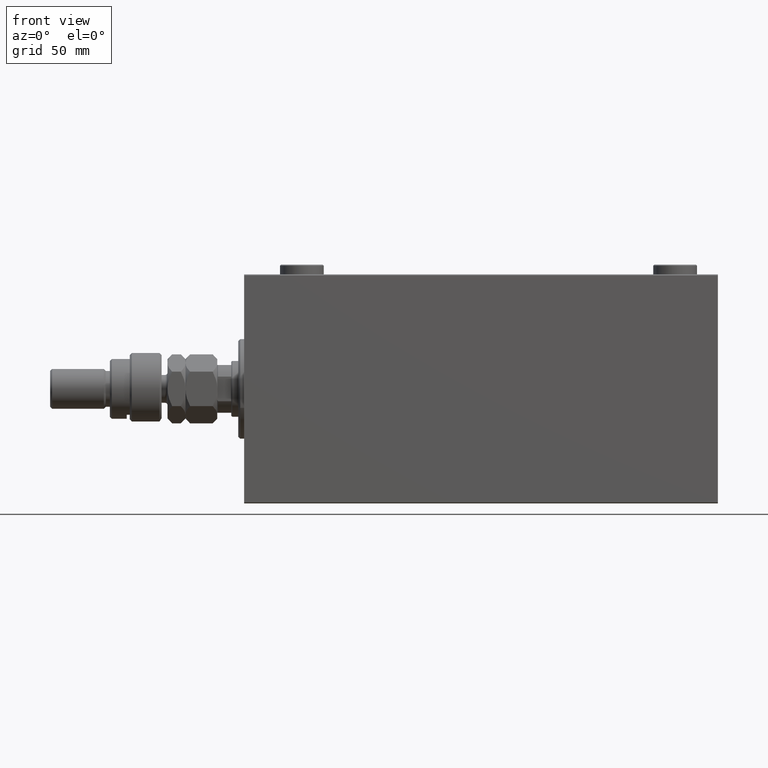
[diagram: clean part render]
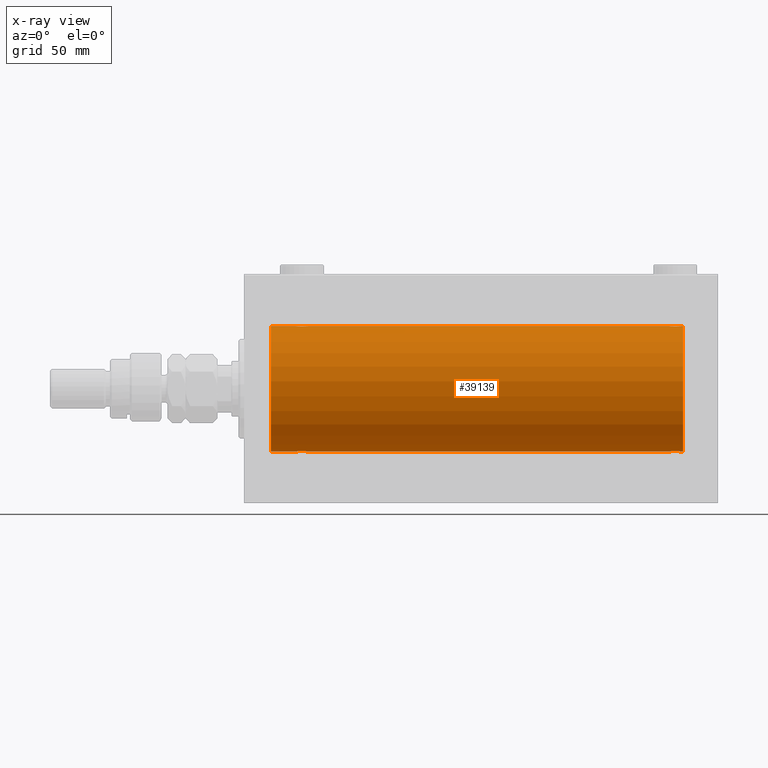
[diagram: x-ray — body ghosted, one internal face saturated and labeled with its STEP entity id]
A machine part, front view, then the same camera in x-ray: the body is ghosted and one INTERNAL B-rep face — a face not visible from any outside direction — is saturated and labeled: STEP entity #39139.
In plain terms, the highlighted cylindrical surface (partial cylindrical patch) has radius 31.5 mm, axis along (-1, -0, -0).
Its self-contained STEP definition (entity closure, byte-faithful):
#83 = CARTESIAN_POINT ( 'NONE',  ( 28.80417705560560648, -3.000152387858484371, -31.35680286115500337 ) ) ;
#229 = CIRCLE ( 'NONE', #27418, 31.50000000000000000 ) ;
#583 = CARTESIAN_POINT ( 'NONE',  ( 218.4846035992466682, -2.258226318633784313, -31.41925597582826413 ) ) ;
#1029 = CARTESIAN_POINT ( 'NONE',  ( 32.00000000000000000, -3.906065418435112189E-16, 31.50000000000000000 ) ) ;
#1279 = CARTESIAN_POINT ( 'NONE',  ( 26.09580549261944427, -0.7775502215293862429, 31.49099686045558144 ) ) ;
#1311 = CARTESIAN_POINT ( 'NONE',  ( 26.00000000000000355, -6.595038141055444136E-15, -31.50000000000000000 ) ) ;
#1442 = DIRECTION ( 'NONE',  ( -1.000000000000000000, 0.000000000000000000, 0.000000000000000000 ) ) ;
#1488 = CARTESIAN_POINT ( 'NONE',  ( 214.5185653712696023, -2.261012035264798214, -31.41905495618427935 ) ) ;
#1499 = VERTEX_POINT ( 'NONE', #1929 ) ;
#1682 = EDGE_CURVE ( 'NONE', #23346, #37969, #41583, .T. ) ;
#1729 = CARTESIAN_POINT ( 'NONE',  ( 219.1041778127472526, -1.502389880413004031, -31.46458023642405166 ) ) ;
#1796 = B_SPLINE_CURVE_WITH_KNOTS ( 'NONE', 3,
 ( #28255, #32635, #2929, #20944, #9767, #20712, #21188, #35815, #43366, #1980, #32153, #10234, #17768, #16823, #39224, #47495, #28732, #28009, #9522, #47022, #43131, #36296, #6599, #9997, #20471, #35582, #36063, #31672, #46539, #21428, #14126, #42886 ),
 .UNSPECIFIED., .F., .F.,
 ( 4, 2, 2, 2, 2, 2, 2, 2, 2, 2, 2, 2, 2, 2, 2, 4 ),
 ( 0.009384682587134643081, 0.009971088165454042307, 0.01055749374377344327, 0.01114389932209284423, 0.01173030490041224345, 0.01231671047873164268, 0.01290311605705104364, 0.01348952163537044460, 0.01407592721368984383, 0.01466233279200924305, 0.01524873837032864402, 0.01583514394864804498, 0.01642154952696744594, 0.01700795510528684690, 0.01759436068360624439, 0.01876717184024504284 ),
 .UNSPECIFIED. ) ;
#1817 = ORIENTED_EDGE ( 'NONE', *, *, #38842, .T. ) ;
#1929 = CARTESIAN_POINT ( 'NONE',  ( 13.50000000000001243, 3.857637417314162689E-15, -31.50000000000000000 ) ) ;
#1980 = CARTESIAN_POINT ( 'NONE',  ( 214.5153964007533887, -2.258226318633788754, 31.41925597582826413 ) ) ;
#2161 = EDGE_CURVE ( 'NONE', #21942, #5650, #19748, .T. ) ;
#2249 = CARTESIAN_POINT ( 'NONE',  ( 32.00000000000000000, 3.857637396137448068E-15, -31.50000000000000000 ) ) ;
#2319 = CARTESIAN_POINT ( 'NONE',  ( 213.4999999999999716, -2.739609923574792981E-14, -31.50000000000000000 ) ) ;
#2574 = VECTOR ( 'NONE', #22155, 1000.000000000000000 ) ;
#2681 = LINE ( 'NONE', #9754, #8133 ) ;
#2929 = CARTESIAN_POINT ( 'NONE',  ( 213.5189849060847678, -0.3904857149112037629, 31.49817436802766935 ) ) ;
#3006 = CARTESIAN_POINT ( 'NONE',  ( 29.77881912642320827, -2.903733559410679455, -31.36590199989303684 ) ) ;
#3491 = CARTESIAN_POINT ( 'NONE',  ( 26.00000000000000355, -0.3965830985361813443, -31.50000000000000711 ) ) ;
#3733 = CARTESIAN_POINT ( 'NONE',  ( 30.83043691487002746, -2.384935707362433988, -31.40977595730572958 ) ) ;
#4257 = ORIENTED_EDGE ( 'NONE', *, *, #18270, .F. ) ;
#4596 = DIRECTION ( 'NONE',  ( -1.000000000000000000, 0.000000000000000000, 0.000000000000000000 ) ) ;
#4688 = CARTESIAN_POINT ( 'NONE',  ( 26.00000000000001066, -0.1958045626907463088, 31.50000000000000711 ) ) ;
#4931 = CARTESIAN_POINT ( 'NONE',  ( 30.32865414687508832, -2.696917666262907520, 31.38442820068731365 ) ) ;
#5054 = CARTESIAN_POINT ( 'NONE',  ( 220.5000000000000000, 3.857637417314162689E-15, -31.50000000000000000 ) ) ;
#5149 = CARTESIAN_POINT ( 'NONE',  ( 214.6729577462972713, -2.387531469909791149, -31.40957782495775419 ) ) ;
#5650 = VERTEX_POINT ( 'NONE', #1311 ) ;
#6258 = EDGE_LOOP ( 'NONE', ( #42930, #40732, #21112, #17277, #28637, #24634, #31928, #28149, #1817, #29227, #17638, #4257 ) ) ;
#6311 = B_SPLINE_CURVE_WITH_KNOTS ( 'NONE', 3,
 ( #7662, #19972, #37601, #8139, #34850, #9035, #1729, #16566, #37363, #583, #23629, #11768, #35331, #20458, #11528, #30270, #31428, #42627, #12666, #46294, #18841, #38497, #38729, #5149, #1488, #24106, #14951, #33703, #16327, #29802, #44671, #31187 ),
 .UNSPECIFIED., .F., .F.,
 ( 4, 2, 2, 2, 2, 2, 2, 2, 2, 2, 2, 2, 2, 2, 2, 4 ),
 ( 0.009384682587134623999, 0.009971088165454023225, 0.01055749374377342419, 0.01114389932209282341, 0.01173030490041222264, 0.01231671047873162186, 0.01290311605705102109, 0.01348952163537042032, 0.01407592721368982128, 0.01466233279200921877, 0.01524873837032861973, 0.01583514394864802069, 0.01642154952696741818, 0.01700795510528681914, 0.01759436068360622010, 0.01876717184024502202 ),
 .UNSPECIFIED. ) ;
#6599 = CARTESIAN_POINT ( 'NONE',  ( 218.0009815629614707, -2.604888532024791203, 31.39229907792058683 ) ) ;
#6675 = CARTESIAN_POINT ( 'NONE',  ( 30.33239958099164824, -2.695056442718529954, -31.38458855656185875 ) ) ;
#7401 = CARTESIAN_POINT ( 'NONE',  ( 26.74175498096735026, -1.984587626072075617, -31.43772577203673180 ) ) ;
#7662 = CARTESIAN_POINT ( 'NONE',  ( 219.4999999999999716, 3.857637396132320472E-15, -31.50000000000000000 ) ) ;
#7865 = CARTESIAN_POINT ( 'NONE',  ( 29.39114547339941552, -2.980809450819701834, 31.35867074198615967 ) ) ;
#8038 = DIRECTION ( 'NONE',  ( 0.000000000000000000, 0.000000000000000000, 1.000000000000000000 ) ) ;
#8099 = VECTOR ( 'NONE', #10260, 1000.000000000000000 ) ;
#8133 = VECTOR ( 'NONE', #17040, 1000.000000000000000 ) ;
#8139 = CARTESIAN_POINT ( 'NONE',  ( 219.4041945073804811, -0.7775502215293821351, -31.49099686045559565 ) ) ;
#8340 = CARTESIAN_POINT ( 'NONE',  ( 31.60192140439154684, -1.506272792558323470, 31.46439306106697131 ) ) ;
#8513 = VECTOR ( 'NONE', #45479, 1000.000000000000000 ) ;
#8745 = CARTESIAN_POINT ( 'NONE',  ( 220.5000000000000000, 0.000000000000000000, 0.000000000000000000 ) ) ;
#8819 = CARTESIAN_POINT ( 'NONE',  ( 30.82704225370267892, -2.387531469909770276, 31.40957782495776129 ) ) ;
#9035 = CARTESIAN_POINT ( 'NONE',  ( 219.1971423883669843, -1.328004386210305476, -31.47251238182141009 ) ) ;
#9522 = CARTESIAN_POINT ( 'NONE',  ( 216.8911454733994049, -2.980809450819698281, 31.35867074198615967 ) ) ;
#9754 = CARTESIAN_POINT ( 'NONE',  ( 220.5000000000000000, 0.000000000000000000, 31.50000000000000000 ) ) ;
#9767 = CARTESIAN_POINT ( 'NONE',  ( 213.6533953625749973, -0.9669616078782046209, 31.48567319468627801 ) ) ;
#9997 = CARTESIAN_POINT ( 'NONE',  ( 218.3270422537026718, -2.387531469909772941, 31.40957782495776840 ) ) ;
#10234 = CARTESIAN_POINT ( 'NONE',  ( 214.9954371499299839, -2.602826974226394086, 31.39247100434485560 ) ) ;
#10260 = DIRECTION ( 'NONE',  ( -1.000000000000000000, -0.000000000000000000, -0.000000000000000000 ) ) ;
#11205 = VERTEX_POINT ( 'NONE', #39574 ) ;
#11496 = CARTESIAN_POINT ( 'NONE',  ( 28.79953541025904684, -2.999845816735297266, 31.35683219171744796 ) ) ;
#11528 = CARTESIAN_POINT ( 'NONE',  ( 217.2788191264232012, -2.903733559410694109, -31.36590199989303684 ) ) ;
#11768 = CARTESIAN_POINT ( 'NONE',  ( 218.0045628500700161, -2.602826974226396306, -31.39247100434486271 ) ) ;
#11886 = CARTESIAN_POINT ( 'NONE',  ( 13.50000000000001243, 0.000000000000000000, 0.000000000000000000 ) ) ;
#11932 = CARTESIAN_POINT ( 'NONE',  ( 220.5000000000000000, 0.000000000000000000, 0.000000000000000000 ) ) ;
#11979 = CARTESIAN_POINT ( 'NONE',  ( 30.50098156296146712, -2.604888532024788983, 31.39229907792058683 ) ) ;
#12174 = FACE_OUTER_BOUND ( 'NONE', #6258, .T. ) ;
#12440 = DIRECTION ( 'NONE',  ( -1.000000000000000000, -0.000000000000000000, -0.000000000000000000 ) ) ;
#12666 = CARTESIAN_POINT ( 'NONE',  ( 216.1088545266006520, -2.980809450819720041, -31.35867074198615967 ) ) ;
#12962 = EDGE_CURVE ( 'NONE', #25191, #15574, #29243, .T. ) ;
#13963 = CARTESIAN_POINT ( 'NONE',  ( 26.00000000000000355, -6.595038141055444136E-15, -31.50000000000000000 ) ) ;
#14126 = CARTESIAN_POINT ( 'NONE',  ( 219.4999999999999716, -0.3965830985361761263, 31.50000000000000000 ) ) ;
#14200 = CARTESIAN_POINT ( 'NONE',  ( 27.67134585312494011, -2.696917666262907520, -31.38442820068732786 ) ) ;
#14682 = CARTESIAN_POINT ( 'NONE',  ( 32.00000000000001421, -0.1958045626907418957, -31.50000000000000711 ) ) ;
#14925 = CARTESIAN_POINT ( 'NONE',  ( 31.69714238836700915, -1.328004386210301480, -31.47251238182141009 ) ) ;
#14951 = CARTESIAN_POINT ( 'NONE',  ( 214.1175312773336827, -1.833765390051052213, -31.44700610425690002 ) ) ;
#15163 = CARTESIAN_POINT ( 'NONE',  ( 27.66760041900836953, -2.695056442718533507, 31.38458855656185875 ) ) ;
#15395 = CARTESIAN_POINT ( 'NONE',  ( 31.25824501903266039, -1.984587626072074285, 31.43772577203672469 ) ) ;
#15574 = VERTEX_POINT ( 'NONE', #43128 ) ;
#15780 = DIRECTION ( 'NONE',  ( 0.000000000000000000, 0.000000000000000000, 1.000000000000000000 ) ) ;
#16118 = CARTESIAN_POINT ( 'NONE',  ( 26.30285761163300151, -1.328004386210305698, 31.47251238182140298 ) ) ;
#16327 = CARTESIAN_POINT ( 'NONE',  ( 213.8047035764099348, -1.331741824817684439, -31.47235367475394341 ) ) ;
#16566 = CARTESIAN_POINT ( 'NONE',  ( 218.8850144227692169, -1.830470878313884553, -31.44719957596828763 ) ) ;
#16823 = CARTESIAN_POINT ( 'NONE',  ( 215.5305554434148121, -2.845838211243326032, 31.37127560316188024 ) ) ;
#17040 = DIRECTION ( 'NONE',  ( -1.000000000000000000, -0.000000000000000000, -0.000000000000000000 ) ) ;
#17277 = ORIENTED_EDGE ( 'NONE', *, *, #44453, .T. ) ;
#17322 = CARTESIAN_POINT ( 'NONE',  ( 220.5000000000000000, 0.000000000000000000, 31.50000000000000000 ) ) ;
#17527 = EDGE_CURVE ( 'NONE', #1499, #24482, #20520, .T. ) ;
#17615 = CARTESIAN_POINT ( 'NONE',  ( 27.01856537126958813, -2.261012035264781783, -31.41905495618428645 ) ) ;
#17638 = ORIENTED_EDGE ( 'NONE', *, *, #44297, .T. ) ;
#17768 = CARTESIAN_POINT ( 'NONE',  ( 215.1676004190082665, -2.695056442718522849, 31.38458855656185165 ) ) ;
#17843 = CARTESIAN_POINT ( 'NONE',  ( 26.39807859560848158, -1.506272792558332130, -31.46439306106697131 ) ) ;
#18089 = CARTESIAN_POINT ( 'NONE',  ( 27.49901843703856130, -2.604888532024793424, -31.39229907792058683 ) ) ;
#18270 = EDGE_CURVE ( 'NONE', #11205, #47390, #2681, .T. ) ;
#18337 = CARTESIAN_POINT ( 'NONE',  ( 29.96944455658523054, -2.845838211243329585, -31.37127560316186603 ) ) ;
#18574 = CARTESIAN_POINT ( 'NONE',  ( 31.60417781274729165, -1.502389880412996259, -31.46458023642406587 ) ) ;
#18841 = CARTESIAN_POINT ( 'NONE',  ( 215.5348427018935809, -2.847307171789053015, -31.37114183851420179 ) ) ;
#18969 = CARTESIAN_POINT ( 'NONE',  ( 220.5000000000000000, 3.857637417314162689E-15, -31.50000000000000000 ) ) ;
#19053 = CARTESIAN_POINT ( 'NONE',  ( 28.60465888999904749, -2.980257240990054513, 31.35872356503797320 ) ) ;
#19171 = VERTEX_POINT ( 'NONE', #32455 ) ;
#19525 = CARTESIAN_POINT ( 'NONE',  ( 26.61498557723073333, -1.830470878313877892, 31.44719957596828053 ) ) ;
#19748 = B_SPLINE_CURVE_WITH_KNOTS ( 'NONE', 3,
 ( #33440, #14682, #25158, #21744, #25398, #14925, #18574, #47334, #32477, #33197, #3733, #44392, #6675, #18337, #3006, #47575, #24920, #83, #36369, #36611, #28810, #14200, #18089, #39781, #17615, #7401, #25883, #17843, #43440, #21502, #3491, #13963 ),
 .UNSPECIFIED., .F., .F.,
 ( 4, 2, 2, 2, 2, 2, 2, 2, 2, 2, 2, 2, 2, 2, 2, 4 ),
 ( 0.009384682587134662163, 0.009971088165454068328, 0.01055749374377347449, 0.01114389932209288066, 0.01173030490041228682, 0.01231671047873168605, 0.01290311605705108527, 0.01348952163537048277, 0.01407592721368988199, 0.01466233279200928122, 0.01524873837032868044, 0.01583514394864807967, 0.01642154952696747716, 0.01700795510528687812, 0.01759436068360627908, 0.01876717184024507407 ),
 .UNSPECIFIED. ) ;
#19972 = CARTESIAN_POINT ( 'NONE',  ( 219.4999999999999432, -0.1958045626907443937, -31.49999999999999289 ) ) ;
#20458 = CARTESIAN_POINT ( 'NONE',  ( 217.4694445565852448, -2.845838211243344684, -31.37127560316186603 ) ) ;
#20471 = CARTESIAN_POINT ( 'NONE',  ( 218.4814346287303408, -2.261012035264779119, 31.41905495618428645 ) ) ;
#20520 = CIRCLE ( 'NONE', #47757, 31.50000000000000000 ) ;
#20712 = CARTESIAN_POINT ( 'NONE',  ( 213.8028576116330157, -1.328004386210311472, 31.47251238182141719 ) ) ;
#20944 = CARTESIAN_POINT ( 'NONE',  ( 213.5958054926194052, -0.7775502215293850217, 31.49099686045560276 ) ) ;
#21112 = ORIENTED_EDGE ( 'NONE', *, *, #23125, .T. ) ;
#21188 = CARTESIAN_POINT ( 'NONE',  ( 213.8958221872526622, -1.502389880412993595, 31.46458023642405877 ) ) ;
#21265 = VECTOR ( 'NONE', #12440, 1000.000000000000000 ) ;
#21428 = CARTESIAN_POINT ( 'NONE',  ( 219.4202066295003419, -0.7905881588836107809, 31.49214662150069088 ) ) ;
#21502 = CARTESIAN_POINT ( 'NONE',  ( 26.07979337049960478, -0.7905881588836203289, -31.49214662150069088 ) ) ;
#21744 = CARTESIAN_POINT ( 'NONE',  ( 31.90419450738055218, -0.7775502215293819130, -31.49099686045559565 ) ) ;
#21942 = VERTEX_POINT ( 'NONE', #2249 ) ;
#22155 = DIRECTION ( 'NONE',  ( -1.000000000000000000, -0.000000000000000000, -0.000000000000000000 ) ) ;
#22946 = CARTESIAN_POINT ( 'NONE',  ( 28.22118087357680238, -2.903733559410683895, 31.36590199989303684 ) ) ;
#23125 = EDGE_CURVE ( 'NONE', #37969, #27931, #6311, .T. ) ;
#23181 = CARTESIAN_POINT ( 'NONE',  ( 32.00000000000001421, -0.3965830985361748495, 31.50000000000001421 ) ) ;
#23346 = VERTEX_POINT ( 'NONE', #18969 ) ;
#23629 = CARTESIAN_POINT ( 'NONE',  ( 218.3304369148700346, -2.384935707362433099, -31.40977595730572958 ) ) ;
#23660 = CARTESIAN_POINT ( 'NONE',  ( 31.38246872266631371, -1.833765390051040223, 31.44700610425690712 ) ) ;
#24106 = CARTESIAN_POINT ( 'NONE',  ( 214.2417549809673289, -1.984587626072089828, -31.43772577203671759 ) ) ;
#24171 = B_SPLINE_CURVE_WITH_KNOTS ( 'NONE', 3,
 ( #41219, #4688, #38038, #1279, #41702, #16118, #45831, #19525, #27069, #42179, #37569, #27311, #15163, #30480, #22946, #19053, #11496, #26350, #7865, #34394, #33913, #4931, #11979, #8819, #38526, #15395, #23660, #8340, #30236, #41461, #23181, #1029 ),
 .UNSPECIFIED., .F., .F.,
 ( 4, 2, 2, 2, 2, 2, 2, 2, 2, 2, 2, 2, 2, 2, 2, 4 ),
 ( 0.009384682587134639611, 0.009971088165454038837, 0.01055749374377343980, 0.01114389932209284076, 0.01173030490041223999, 0.01231671047873163921, 0.01290311605705104017, 0.01348952163537044113, 0.01407592721368984036, 0.01466233279200923958, 0.01524873837032864055, 0.01583514394864804151, 0.01642154952696744247, 0.01700795510528683996, 0.01759436068360624092, 0.01876717184024503243 ),
 .UNSPECIFIED. ) ;
#24482 = VERTEX_POINT ( 'NONE', #31075 ) ;
#24634 = ORIENTED_EDGE ( 'NONE', *, *, #47061, .T. ) ;
#24920 = CARTESIAN_POINT ( 'NONE',  ( 29.20046458974095671, -2.999845816735294157, -31.35683219171744085 ) ) ;
#25158 = CARTESIAN_POINT ( 'NONE',  ( 31.98101509391517538, -0.3904857149111993775, -31.49817436802766224 ) ) ;
#25191 = VERTEX_POINT ( 'NONE', #33367 ) ;
#25398 = CARTESIAN_POINT ( 'NONE',  ( 31.84660463742499559, -0.9669616078781945179, -31.48567319468626735 ) ) ;
#25804 = LINE ( 'NONE', #29453, #2574 ) ;
#25883 = CARTESIAN_POINT ( 'NONE',  ( 26.61753127733371116, -1.833765390051047106, -31.44700610425690002 ) ) ;
#26350 = CARTESIAN_POINT ( 'NONE',  ( 29.19582294439440417, -3.000152387858486147, 31.35680286115499626 ) ) ;
#27026 = CYLINDRICAL_SURFACE ( 'NONE', #43606, 31.50000000000000000 ) ;
#27069 = CARTESIAN_POINT ( 'NONE',  ( 26.73904537543869608, -1.981494824113328779, 31.43792153503155973 ) ) ;
#27311 = CARTESIAN_POINT ( 'NONE',  ( 27.49543714993000876, -2.602826974226395862, 31.39247100434485560 ) ) ;
#27418 = AXIS2_PLACEMENT_3D ( 'NONE', #8745, #1442, #8038 ) ;
#27771 = LINE ( 'NONE', #31200, #21265 ) ;
#27931 = VERTEX_POINT ( 'NONE', #2319 ) ;
#28009 = CARTESIAN_POINT ( 'NONE',  ( 216.6958229443943651, -3.000152387858483927, 31.35680286115499626 ) ) ;
#28149 = ORIENTED_EDGE ( 'NONE', *, *, #46603, .F. ) ;
#28255 = CARTESIAN_POINT ( 'NONE',  ( 213.4999999999999716, -2.118130973563677748E-23, 31.50000000000000000 ) ) ;
#28637 = ORIENTED_EDGE ( 'NONE', *, *, #2161, .T. ) ;
#28732 = CARTESIAN_POINT ( 'NONE',  ( 216.2995354102589545, -2.999845816735293713, 31.35683219171744796 ) ) ;
#28810 = CARTESIAN_POINT ( 'NONE',  ( 28.03484270189360217, -2.847307171789034808, -31.37114183851420179 ) ) ;
#29227 = ORIENTED_EDGE ( 'NONE', *, *, #12962, .F. ) ;
#29243 = LINE ( 'NONE', #17322, #8099 ) ;
#29453 = CARTESIAN_POINT ( 'NONE',  ( 220.5000000000000000, 3.857637417314162689E-15, -31.50000000000000000 ) ) ;
#29466 = CARTESIAN_POINT ( 'NONE',  ( 220.5000000000000000, 0.000000000000000000, 31.50000000000000000 ) ) ;
#29802 = CARTESIAN_POINT ( 'NONE',  ( 213.5797933704996581, -0.7905881588836380924, -31.49214662150069799 ) ) ;
#30236 = CARTESIAN_POINT ( 'NONE',  ( 31.69529642359010424, -1.331741824817659348, 31.47235367475393630 ) ) ;
#30270 = CARTESIAN_POINT ( 'NONE',  ( 216.8953411100010271, -2.980257240990069167, -31.35872356503798741 ) ) ;
#30480 = CARTESIAN_POINT ( 'NONE',  ( 28.03055544341478722, -2.845838211243333138, 31.37127560316186603 ) ) ;
#30681 = DIRECTION ( 'NONE',  ( -1.000000000000000000, -0.000000000000000000, -0.000000000000000000 ) ) ;
#31075 = CARTESIAN_POINT ( 'NONE',  ( 13.50000000000001243, 0.000000000000000000, 31.50000000000000000 ) ) ;
#31187 = CARTESIAN_POINT ( 'NONE',  ( 213.4999999999999716, -2.739609923574792981E-14, -31.50000000000000000 ) ) ;
#31200 = CARTESIAN_POINT ( 'NONE',  ( 220.5000000000000000, 3.857637417314162689E-15, -31.50000000000000000 ) ) ;
#31428 = CARTESIAN_POINT ( 'NONE',  ( 216.7004645897409887, -2.999845816735311477, -31.35683219171744796 ) ) ;
#31672 = CARTESIAN_POINT ( 'NONE',  ( 219.1019214043915326, -1.506272792558311702, 31.46439306106696421 ) ) ;
#31928 = ORIENTED_EDGE ( 'NONE', *, *, #17527, .T. ) ;
#32152 = VECTOR ( 'NONE', #39720, 1000.000000000000000 ) ;
#32153 = CARTESIAN_POINT ( 'NONE',  ( 214.6695630851299086, -2.384935707362434876, 31.40977595730572958 ) ) ;
#32455 = CARTESIAN_POINT ( 'NONE',  ( 26.00000000000000355, -2.117263226567934635E-23, 31.50000000000000000 ) ) ;
#32477 = CARTESIAN_POINT ( 'NONE',  ( 31.26095462456130747, -1.981494824113326114, -31.43792153503156683 ) ) ;
#32635 = CARTESIAN_POINT ( 'NONE',  ( 213.5000000000000284, -0.1958045626907475856, 31.50000000000000000 ) ) ;
#33197 = CARTESIAN_POINT ( 'NONE',  ( 30.98460359924664687, -2.258226318633781649, -31.41925597582825702 ) ) ;
#33367 = CARTESIAN_POINT ( 'NONE',  ( 213.4999999999999716, -2.118130973563677748E-23, 31.50000000000000000 ) ) ;
#33440 = CARTESIAN_POINT ( 'NONE',  ( 32.00000000000000000, 3.857637396137448068E-15, -31.50000000000000000 ) ) ;
#33703 = CARTESIAN_POINT ( 'NONE',  ( 213.8980785956084389, -1.506272792558333462, -31.46439306106695710 ) ) ;
#33913 = CARTESIAN_POINT ( 'NONE',  ( 29.96515729810641204, -2.847307171789037028, 31.37114183851420890 ) ) ;
#34394 = CARTESIAN_POINT ( 'NONE',  ( 29.77469094434372821, -2.904836261170106404, 31.36579955910873707 ) ) ;
#34850 = CARTESIAN_POINT ( 'NONE',  ( 219.3466046374250311, -0.9669616078781981816, -31.48567319468627446 ) ) ;
#35331 = CARTESIAN_POINT ( 'NONE',  ( 217.8323995809916198, -2.695056442718541501, -31.38458855656185875 ) ) ;
#35582 = CARTESIAN_POINT ( 'NONE',  ( 218.7582450190326142, -1.984587626072069844, 31.43772577203671759 ) ) ;
#35815 = CARTESIAN_POINT ( 'NONE',  ( 214.1149855772307262, -1.830470878313871008, 31.44719957596828763 ) ) ;
#36063 = CARTESIAN_POINT ( 'NONE',  ( 218.8824687226662888, -1.833765390051030009, 31.44700610425690712 ) ) ;
#36296 = CARTESIAN_POINT ( 'NONE',  ( 217.8286541468750670, -2.696917666262893309, 31.38442820068731365 ) ) ;
#36369 = CARTESIAN_POINT ( 'NONE',  ( 28.60885452660059869, -2.980809450819698725, -31.35867074198615256 ) ) ;
#36611 = CARTESIAN_POINT ( 'NONE',  ( 28.22530905565627179, -2.904836261170103739, -31.36579955910872286 ) ) ;
#37363 = CARTESIAN_POINT ( 'NONE',  ( 218.7609546245612364, -1.981494824113325226, -31.43792153503156683 ) ) ;
#37569 = CARTESIAN_POINT ( 'NONE',  ( 27.16956308512997964, -2.384935707362437096, 31.40977595730572958 ) ) ;
#37601 = CARTESIAN_POINT ( 'NONE',  ( 219.4810150939152038, -0.3904857149112007098, -31.49817436802768000 ) ) ;
#37969 = VERTEX_POINT ( 'NONE', #48205 ) ;
#38038 = CARTESIAN_POINT ( 'NONE',  ( 26.01898490608483527, -0.3904857149112033743, 31.49817436802766935 ) ) ;
#38497 = CARTESIAN_POINT ( 'NONE',  ( 215.1713458531248477, -2.696917666262923952, -31.38442820068732075 ) ) ;
#38526 = CARTESIAN_POINT ( 'NONE',  ( 30.98143462873041898, -2.261012035264782227, 31.41905495618429356 ) ) ;
#38729 = CARTESIAN_POINT ( 'NONE',  ( 214.9990184370385009, -2.604888532024808523, -31.39229907792057972 ) ) ;
#38842 = EDGE_CURVE ( 'NONE', #19171, #15574, #24171, .T. ) ;
#39139 = ADVANCED_FACE ( 'NONE', ( #12174 ), #27026, .F. ) ;
#39224 = CARTESIAN_POINT ( 'NONE',  ( 215.7211808735767704, -2.903733559410683895, 31.36590199989304395 ) ) ;
#39246 = CARTESIAN_POINT ( 'NONE',  ( 219.4999999999999716, 4.699731104275013306E-15, 31.50000000000000000 ) ) ;
#39574 = CARTESIAN_POINT ( 'NONE',  ( 220.5000000000000000, 0.000000000000000000, 31.50000000000000000 ) ) ;
#39720 = DIRECTION ( 'NONE',  ( -1.000000000000000000, -0.000000000000000000, -0.000000000000000000 ) ) ;
#39781 = CARTESIAN_POINT ( 'NONE',  ( 27.17295774629732819, -2.387531469909775605, -31.40957782495775419 ) ) ;
#40732 = ORIENTED_EDGE ( 'NONE', *, *, #1682, .T. ) ;
#41174 = DIRECTION ( 'NONE',  ( 0.000000000000000000, 0.000000000000000000, 1.000000000000000000 ) ) ;
#41219 = CARTESIAN_POINT ( 'NONE',  ( 26.00000000000000355, -2.117263226567934635E-23, 31.50000000000000000 ) ) ;
#41461 = CARTESIAN_POINT ( 'NONE',  ( 31.92020662950040943, -0.7905881588836116691, 31.49214662150068378 ) ) ;
#41583 = LINE ( 'NONE', #5054, #8513 ) ;
#41702 = CARTESIAN_POINT ( 'NONE',  ( 26.15339536257501507, -0.9669616078781987367, 31.48567319468626735 ) ) ;
#42179 = CARTESIAN_POINT ( 'NONE',  ( 27.01539640075335669, -2.258226318633785201, 31.41925597582825702 ) ) ;
#42627 = CARTESIAN_POINT ( 'NONE',  ( 216.3041770556055496, -3.000152387858503911, -31.35680286115500337 ) ) ;
#42886 = CARTESIAN_POINT ( 'NONE',  ( 219.4999999999999716, 4.699731104275013306E-15, 31.50000000000000000 ) ) ;
#42930 = ORIENTED_EDGE ( 'NONE', *, *, #44532, .F. ) ;
#43128 = CARTESIAN_POINT ( 'NONE',  ( 32.00000000000000000, -3.906065418435112189E-16, 31.50000000000000000 ) ) ;
#43131 = CARTESIAN_POINT ( 'NONE',  ( 217.4651572981064191, -2.847307171789025926, 31.37114183851420179 ) ) ;
#43366 = CARTESIAN_POINT ( 'NONE',  ( 214.2390453754387352, -1.981494824113333442, 31.43792153503156683 ) ) ;
#43440 = CARTESIAN_POINT ( 'NONE',  ( 26.30470357640989576, -1.331741824817665343, -31.47235367475392920 ) ) ;
#43606 = AXIS2_PLACEMENT_3D ( 'NONE', #11932, #30681, #41174 ) ;
#44297 = EDGE_CURVE ( 'NONE', #25191, #47390, #1796, .T. ) ;
#44392 = CARTESIAN_POINT ( 'NONE',  ( 30.50456285006998769, -2.602826974226392309, -31.39247100434485560 ) ) ;
#44453 = EDGE_CURVE ( 'NONE', #27931, #21942, #25804, .T. ) ;
#44532 = EDGE_CURVE ( 'NONE', #23346, #11205, #229, .T. ) ;
#44671 = CARTESIAN_POINT ( 'NONE',  ( 213.4999999999999716, -0.3965830985362022165, -31.50000000000001421 ) ) ;
#45479 = DIRECTION ( 'NONE',  ( -1.000000000000000000, -0.000000000000000000, -0.000000000000000000 ) ) ;
#45831 = CARTESIAN_POINT ( 'NONE',  ( 26.39582218725271900, -1.502389880413001144, 31.46458023642405166 ) ) ;
#46294 = CARTESIAN_POINT ( 'NONE',  ( 215.7253090556562540, -2.904836261170126832, -31.36579955910873707 ) ) ;
#46539 = CARTESIAN_POINT ( 'NONE',  ( 219.1952964235900367, -1.331741824817656683, 31.47235367475393630 ) ) ;
#46603 = EDGE_CURVE ( 'NONE', #19171, #24482, #47998, .T. ) ;
#47022 = CARTESIAN_POINT ( 'NONE',  ( 217.2746909443436891, -2.904836261170101519, 31.36579955910872286 ) ) ;
#47061 = EDGE_CURVE ( 'NONE', #5650, #1499, #27771, .T. ) ;
#47334 = CARTESIAN_POINT ( 'NONE',  ( 31.38501442276926667, -1.830470878313872563, -31.44719957596828763 ) ) ;
#47390 = VERTEX_POINT ( 'NONE', #39246 ) ;
#47495 = CARTESIAN_POINT ( 'NONE',  ( 216.1046588899990866, -2.980257240990053624, 31.35872356503797320 ) ) ;
#47575 = CARTESIAN_POINT ( 'NONE',  ( 29.39534111000094541, -2.980257240990050960, -31.35872356503797320 ) ) ;
#47757 = AXIS2_PLACEMENT_3D ( 'NONE', #11886, #4596, #15780 ) ;
#47998 = LINE ( 'NONE', #29466, #32152 ) ;
#48205 = CARTESIAN_POINT ( 'NONE',  ( 219.4999999999999716, 3.857637396132320472E-15, -31.50000000000000000 ) ) ;